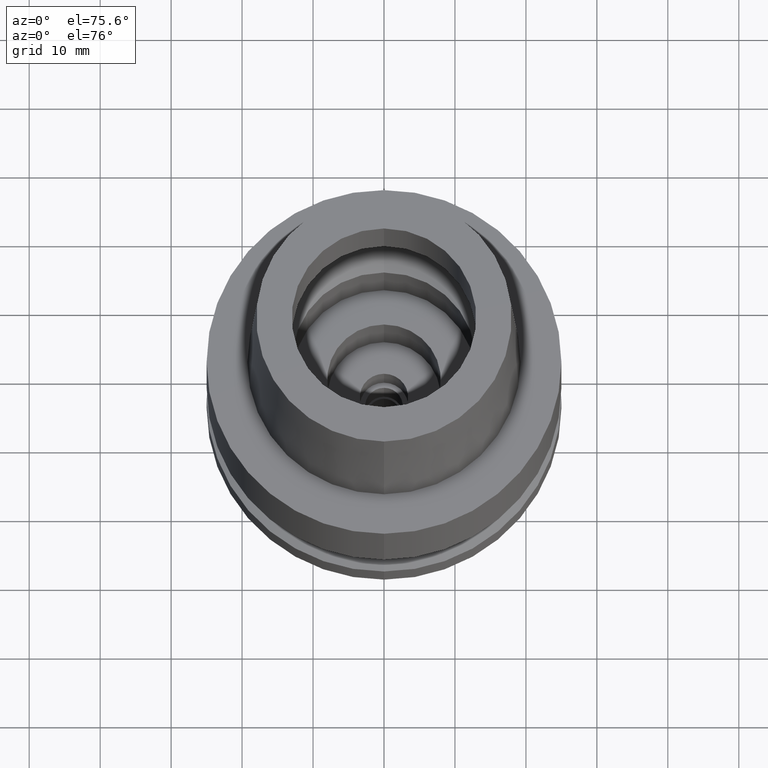
[diagram: clean part render]
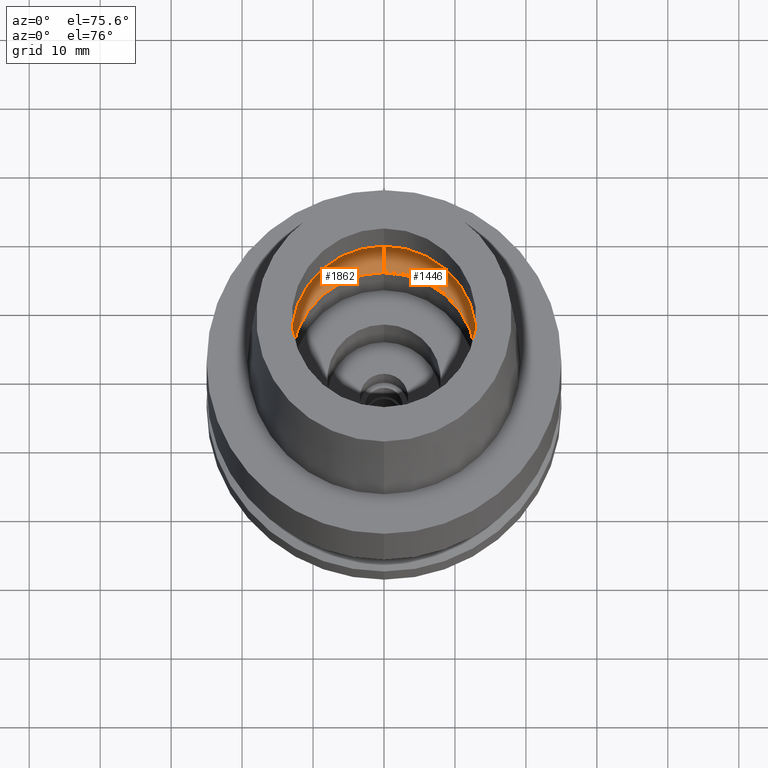
[diagram: same view with one multi-face feature highlighted, each face labeled with its STEP entity id]
A machine part, auxiliary view. The highlighted faces form ONE feature: a constant-radius fillet chain: 2 tangent blend faces with common blend radius 6 mm. The faces share edges in the B-rep.
Their STEP definitions:
[1] entity #1862 (Torus):
#38 = DIRECTION ( 'NONE',  ( 0.0000000000000000000, 0.5000000000000169864, -0.8660254037844289376 ) ) ;
#203 = DIRECTION ( 'NONE',  ( 0.0000000000000000000, -0.5000000000000169864, -0.8660254037844289376 ) ) ;
#241 = CARTESIAN_POINT ( 'NONE',  ( 0.0000000000000000000, 16.00000000000000000, 5.245999999999999552 ) ) ;
#447 = DIRECTION ( 'NONE',  ( 1.000000000000000000, 0.0000000000000000000, 0.0000000000000000000 ) ) ;
#476 = ORIENTED_EDGE ( 'NONE', *, *, #2579, .F. ) ;
#481 = DIRECTION ( 'NONE',  ( 0.0000000000000000000, 0.0000000000000000000, -1.000000000000000000 ) ) ;
#532 = CIRCLE ( 'NONE', #1514, 13.00000000000000000 ) ;
#576 = DIRECTION ( 'NONE',  ( 0.0000000000000000000, 0.0000000000000000000, 1.000000000000000000 ) ) ;
#616 = CARTESIAN_POINT ( 'NONE',  ( 0.0000000000000000000, 0.0000000000000000000, 0.04984757729338000487 ) ) ;
#643 = EDGE_LOOP ( 'NONE', ( #904, #476, #1046, #2084 ) ) ;
#693 = CIRCLE ( 'NONE', #1964, 16.00000000000000000 ) ;
#851 = DIRECTION ( 'NONE',  ( 0.0000000000000000000, -1.000000000000000000, 0.0000000000000000000 ) ) ;
#878 = TOROIDAL_SURFACE ( 'NONE', #1143, 10.00000000000000000, 6.000000000000000000 ) ;
#904 = ORIENTED_EDGE ( 'NONE', *, *, #1039, .F. ) ;
#924 = CIRCLE ( 'NONE', #2239, 6.000000000000000000 ) ;
#944 = EDGE_CURVE ( 'NONE', #2096, #953, #2440, .T. ) ;
#953 = VERTEX_POINT ( 'NONE', #241 ) ;
#1037 = DIRECTION ( 'NONE',  ( 0.0000000000000000000, 1.000000000000000000, 0.0000000000000000000 ) ) ;
#1039 = EDGE_CURVE ( 'NONE', #1777, #953, #693, .T. ) ;
#1046 = ORIENTED_EDGE ( 'NONE', *, *, #2366, .F. ) ;
#1060 = DIRECTION ( 'NONE',  ( 0.0000000000000000000, 0.0000000000000000000, 1.000000000000000000 ) ) ;
#1143 = AXIS2_PLACEMENT_3D ( 'NONE', #2685, #1060, #1037 ) ;
#1278 = AXIS2_PLACEMENT_3D ( 'NONE', #1943, #447, #38 ) ;
#1469 = FACE_OUTER_BOUND ( 'NONE', #643, .T. ) ;
#1514 = AXIS2_PLACEMENT_3D ( 'NONE', #616, #576, #2462 ) ;
#1777 = VERTEX_POINT ( 'NONE', #1825 ) ;
#1825 = CARTESIAN_POINT ( 'NONE',  ( 0.0000000000000000000, -16.00000000000000000, 5.245999999999999552 ) ) ;
#1838 = DIRECTION ( 'NONE',  ( -1.000000000000000000, 0.0000000000000000000, 0.0000000000000000000 ) ) ;
#1862 = ADVANCED_FACE ( 'NONE', ( #1469 ), #878, .F. ) ;
#1943 = CARTESIAN_POINT ( 'NONE',  ( 0.0000000000000000000, 10.00000000000000000, 5.245999999999999552 ) ) ;
#1964 = AXIS2_PLACEMENT_3D ( 'NONE', #2133, #481, #851 ) ;
#2060 = CARTESIAN_POINT ( 'NONE',  ( 0.0000000000000000000, -10.00000000000000000, 5.245999999999999552 ) ) ;
#2084 = ORIENTED_EDGE ( 'NONE', *, *, #944, .T. ) ;
#2096 = VERTEX_POINT ( 'NONE', #2342 ) ;
#2133 = CARTESIAN_POINT ( 'NONE',  ( 0.0000000000000000000, 0.0000000000000000000, 5.245999999999999552 ) ) ;
#2239 = AXIS2_PLACEMENT_3D ( 'NONE', #2060, #1838, #203 ) ;
#2342 = CARTESIAN_POINT ( 'NONE',  ( 0.0000000000000000000, 13.00000000000000000, 0.04984757729340000276 ) ) ;
#2366 = EDGE_CURVE ( 'NONE', #2096, #2663, #532, .T. ) ;
#2440 = CIRCLE ( 'NONE', #1278, 6.000000000000000000 ) ;
#2462 = DIRECTION ( 'NONE',  ( 0.0000000000000000000, 1.000000000000000000, 0.0000000000000000000 ) ) ;
#2515 = CARTESIAN_POINT ( 'NONE',  ( 0.0000000000000000000, -13.00000000000000000, 0.04984757729338000487 ) ) ;
#2579 = EDGE_CURVE ( 'NONE', #2663, #1777, #924, .T. ) ;
#2663 = VERTEX_POINT ( 'NONE', #2515 ) ;
#2685 = CARTESIAN_POINT ( 'NONE',  ( 0.0000000000000000000, 0.0000000000000000000, 5.245999999999999552 ) ) ;
[2] entity #1446 (Torus):
#38 = DIRECTION ( 'NONE',  ( 0.0000000000000000000, 0.5000000000000169864, -0.8660254037844289376 ) ) ;
#43 = DIRECTION ( 'NONE',  ( 0.0000000000000000000, -1.000000000000000000, 0.0000000000000000000 ) ) ;
#65 = ORIENTED_EDGE ( 'NONE', *, *, #1066, .F. ) ;
#203 = DIRECTION ( 'NONE',  ( 0.0000000000000000000, -0.5000000000000169864, -0.8660254037844289376 ) ) ;
#241 = CARTESIAN_POINT ( 'NONE',  ( 0.0000000000000000000, 16.00000000000000000, 5.245999999999999552 ) ) ;
#265 = DIRECTION ( 'NONE',  ( 0.0000000000000000000, 0.0000000000000000000, 1.000000000000000000 ) ) ;
#435 = ORIENTED_EDGE ( 'NONE', *, *, #944, .F. ) ;
#447 = DIRECTION ( 'NONE',  ( 1.000000000000000000, 0.0000000000000000000, 0.0000000000000000000 ) ) ;
#475 = CARTESIAN_POINT ( 'NONE',  ( 0.0000000000000000000, 0.0000000000000000000, 0.04984757729338000487 ) ) ;
#652 = AXIS2_PLACEMENT_3D ( 'NONE', #1300, #2338, #1910 ) ;
#893 = ORIENTED_EDGE ( 'NONE', *, *, #2579, .T. ) ;
#924 = CIRCLE ( 'NONE', #2239, 6.000000000000000000 ) ;
#944 = EDGE_CURVE ( 'NONE', #2096, #953, #2440, .T. ) ;
#953 = VERTEX_POINT ( 'NONE', #241 ) ;
#983 = FACE_OUTER_BOUND ( 'NONE', #2073, .T. ) ;
#1066 = EDGE_CURVE ( 'NONE', #953, #1777, #1507, .T. ) ;
#1235 = AXIS2_PLACEMENT_3D ( 'NONE', #1921, #1739, #1716 ) ;
#1278 = AXIS2_PLACEMENT_3D ( 'NONE', #1943, #447, #38 ) ;
#1300 = CARTESIAN_POINT ( 'NONE',  ( 0.0000000000000000000, 0.0000000000000000000, 5.245999999999999552 ) ) ;
#1416 = TOROIDAL_SURFACE ( 'NONE', #1235, 10.00000000000000000, 6.000000000000000000 ) ;
#1446 = ADVANCED_FACE ( 'NONE', ( #983 ), #1416, .F. ) ;
#1466 = AXIS2_PLACEMENT_3D ( 'NONE', #475, #265, #43 ) ;
#1507 = CIRCLE ( 'NONE', #652, 16.00000000000000000 ) ;
#1716 = DIRECTION ( 'NONE',  ( 0.0000000000000000000, 1.000000000000000000, 0.0000000000000000000 ) ) ;
#1739 = DIRECTION ( 'NONE',  ( 0.0000000000000000000, 0.0000000000000000000, 1.000000000000000000 ) ) ;
#1777 = VERTEX_POINT ( 'NONE', #1825 ) ;
#1825 = CARTESIAN_POINT ( 'NONE',  ( 0.0000000000000000000, -16.00000000000000000, 5.245999999999999552 ) ) ;
#1838 = DIRECTION ( 'NONE',  ( -1.000000000000000000, 0.0000000000000000000, 0.0000000000000000000 ) ) ;
#1846 = CIRCLE ( 'NONE', #1466, 13.00000000000000000 ) ;
#1910 = DIRECTION ( 'NONE',  ( 0.0000000000000000000, 1.000000000000000000, 0.0000000000000000000 ) ) ;
#1921 = CARTESIAN_POINT ( 'NONE',  ( 0.0000000000000000000, 0.0000000000000000000, 5.245999999999999552 ) ) ;
#1943 = CARTESIAN_POINT ( 'NONE',  ( 0.0000000000000000000, 10.00000000000000000, 5.245999999999999552 ) ) ;
#1966 = ORIENTED_EDGE ( 'NONE', *, *, #2074, .F. ) ;
#2060 = CARTESIAN_POINT ( 'NONE',  ( 0.0000000000000000000, -10.00000000000000000, 5.245999999999999552 ) ) ;
#2073 = EDGE_LOOP ( 'NONE', ( #1966, #893, #65, #435 ) ) ;
#2074 = EDGE_CURVE ( 'NONE', #2663, #2096, #1846, .T. ) ;
#2096 = VERTEX_POINT ( 'NONE', #2342 ) ;
#2239 = AXIS2_PLACEMENT_3D ( 'NONE', #2060, #1838, #203 ) ;
#2338 = DIRECTION ( 'NONE',  ( 0.0000000000000000000, 0.0000000000000000000, -1.000000000000000000 ) ) ;
#2342 = CARTESIAN_POINT ( 'NONE',  ( 0.0000000000000000000, 13.00000000000000000, 0.04984757729340000276 ) ) ;
#2440 = CIRCLE ( 'NONE', #1278, 6.000000000000000000 ) ;
#2515 = CARTESIAN_POINT ( 'NONE',  ( 0.0000000000000000000, -13.00000000000000000, 0.04984757729338000487 ) ) ;
#2579 = EDGE_CURVE ( 'NONE', #2663, #1777, #924, .T. ) ;
#2663 = VERTEX_POINT ( 'NONE', #2515 ) ;